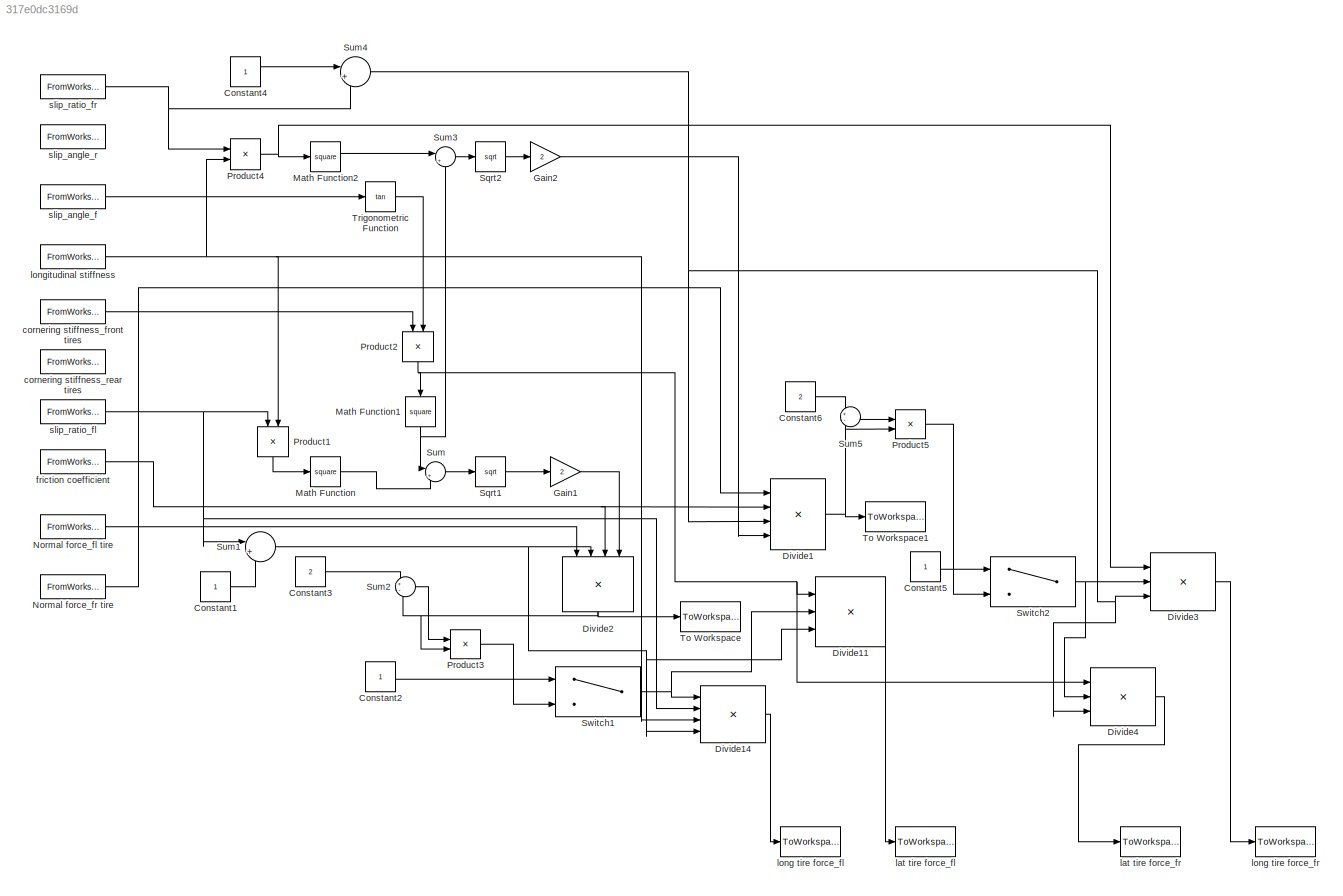
MODEL slx_317e0dc3169d
KIND model
CONFIG AbsTol = auto
CONFIG FixedStep = auto
CONFIG MaxStep = auto
CONFIG MinStep = auto
CONFIG RelTol = 1e-3
CONFIG SampleTimeConstraint = Unconstrained
CONFIG Solver = ode45
CONFIG SolverMode = Auto
CONFIG SolverName = ode45
CONFIG StartTime = 0.0
CONFIG StopTime = 10.0
BLOCK [Constant] Constant1
BLOCK [Constant] Constant2
BLOCK [Constant] Constant3
  Value = 2
BLOCK [Constant] Constant4
BLOCK [Constant] Constant5
BLOCK [Constant] Constant6
  Value = 2
BLOCK [Product] Divide1
  InputSameDT = off
  Inputs = ***/
  OutDataTypeStr = Inherit: Inherit via internal rule
  Ports = [4, 1]
  RndMeth = Floor
  SaturateOnIntegerOverflow = off
BLOCK [Product] Divide11
  InputSameDT = off
  Inputs = **/
  OutDataTypeStr = Inherit: Inherit via internal rule
  Ports = [3, 1]
  RndMeth = Floor
  SaturateOnIntegerOverflow = off
BLOCK [Product] Divide14
  InputSameDT = off
  Inputs = ***/
  OutDataTypeStr = Inherit: Inherit via internal rule
  Ports = [4, 1]
  RndMeth = Floor
  SaturateOnIntegerOverflow = off
BLOCK [Product] Divide2
  InputSameDT = off
  Inputs = ***/
  OutDataTypeStr = Inherit: Inherit via internal rule
  Ports = [4, 1]
  RndMeth = Floor
  SaturateOnIntegerOverflow = off
BLOCK [Product] Divide3
  InputSameDT = off
  Inputs = **/
  OutDataTypeStr = Inherit: Inherit via internal rule
  Ports = [3, 1]
  RndMeth = Floor
  SaturateOnIntegerOverflow = off
BLOCK [Product] Divide4
  InputSameDT = off
  Inputs = **/
  OutDataTypeStr = Inherit: Inherit via internal rule
  Ports = [3, 1]
  RndMeth = Floor
  SaturateOnIntegerOverflow = off
BLOCK [Gain] Gain1
  Gain = 2
  OutDataTypeStr = Inherit: Inherit via internal rule
  ParamDataTypeStr = Inherit: Inherit via internal rule
  SaturateOnIntegerOverflow = off
BLOCK [Gain] Gain2
  Gain = 2
  OutDataTypeStr = Inherit: Inherit via internal rule
  ParamDataTypeStr = Inherit: Inherit via internal rule
  SaturateOnIntegerOverflow = off
BLOCK [Math] Math Function
  Operator = square
  Ports = [1, 1]
BLOCK [Math] Math Function1
  Operator = square
  Ports = [1, 1]
BLOCK [Math] Math Function2
  Operator = square
  Ports = [1, 1]
BLOCK [FromWorkspace] Normal force_fl tire
  SampleTime = 0
  VariableName = Fz_fl
  ZeroCross = on
BLOCK [FromWorkspace] Normal force_fr tire
  SampleTime = 0
  VariableName = Fz_fr
  ZeroCross = on
BLOCK [Product] Product1
  InputSameDT = off
  OutDataTypeStr = Inherit: Inherit via internal rule
  Ports = [2, 1]
  RndMeth = Floor
  SaturateOnIntegerOverflow = off
BLOCK [Product] Product2
  InputSameDT = off
  OutDataTypeStr = Inherit: Inherit via internal rule
  Ports = [2, 1]
  RndMeth = Floor
  SaturateOnIntegerOverflow = off
BLOCK [Product] Product3
  InputSameDT = off
  OutDataTypeStr = Inherit: Inherit via internal rule
  Ports = [2, 1]
  RndMeth = Floor
  SaturateOnIntegerOverflow = off
BLOCK [Product] Product4
  InputSameDT = off
  OutDataTypeStr = Inherit: Inherit via internal rule
  Ports = [2, 1]
  RndMeth = Floor
  SaturateOnIntegerOverflow = off
BLOCK [Product] Product5
  InputSameDT = off
  OutDataTypeStr = Inherit: Inherit via internal rule
  Ports = [2, 1]
  RndMeth = Floor
  SaturateOnIntegerOverflow = off
BLOCK [Sqrt] Sqrt1
BLOCK [Sqrt] Sqrt2
BLOCK [Sum] Sum
  IconShape = round
  InputSameDT = off
  Inputs = |++
  OutDataTypeStr = Inherit: Inherit via internal rule
  Ports = [2, 1]
  SaturateOnIntegerOverflow = off
BLOCK [Sum] Sum1
  IconShape = round
  InputSameDT = off
  Inputs = |++
  OutDataTypeStr = Inherit: Inherit via internal rule
  Ports = [2, 1]
  SaturateOnIntegerOverflow = off
BLOCK [Sum] Sum2
  IconShape = round
  InputSameDT = off
  Inputs = +-
  OutDataTypeStr = Inherit: Inherit via internal rule
  Ports = [2, 1]
  SaturateOnIntegerOverflow = off
BLOCK [Sum] Sum3
  IconShape = round
  InputSameDT = off
  Inputs = |++
  OutDataTypeStr = Inherit: Inherit via internal rule
  Ports = [2, 1]
  SaturateOnIntegerOverflow = off
BLOCK [Sum] Sum4
  IconShape = round
  InputSameDT = off
  Inputs = |++
  OutDataTypeStr = Inherit: Inherit via internal rule
  Ports = [2, 1]
  SaturateOnIntegerOverflow = off
BLOCK [Sum] Sum5
  IconShape = round
  InputSameDT = off
  Inputs = +-
  OutDataTypeStr = Inherit: Inherit via internal rule
  Ports = [2, 1]
  SaturateOnIntegerOverflow = off
BLOCK [Switch] Switch1
  InputSameDT = off
  SaturateOnIntegerOverflow = off
  Threshold = 1
BLOCK [Switch] Switch2
  InputSameDT = off
  SaturateOnIntegerOverflow = off
  Threshold = 1
BLOCK [ToWorkspace] To Workspace
  FixptAsFi = on
  MaxDataPoints = inf
  Ports = [1]
  SampleTime = -1
  Save2DSignal = 3-D array (concatenate along third dimension)
  SaveFormat = Timeseries
  VariableName = lambda_fl
BLOCK [ToWorkspace] To Workspace1
  FixptAsFi = on
  MaxDataPoints = inf
  Ports = [1]
  SampleTime = -1
  Save2DSignal = 3-D array (concatenate along third dimension)
  SaveFormat = Timeseries
  VariableName = lambda_fr
BLOCK [Trigonometry] Trigonometric Function
  Operator = tan
  Ports = [1, 1]
BLOCK [FromWorkspace] cornering stiffness_front tires
  SampleTime = 0
  VariableName = corn_stiff_f
  ZeroCross = on
BLOCK [FromWorkspace] cornering stiffness_rear tires
  SampleTime = 0
  VariableName = corn_stiff_r
  ZeroCross = on
BLOCK [FromWorkspace] friction coefficient
  SampleTime = 0
  VariableName = friction_coeff
  ZeroCross = on
BLOCK [ToWorkspace] lat tire force_fl
  FixptAsFi = on
  MaxDataPoints = inf
  Ports = [1]
  SampleTime = -1
  Save2DSignal = 3-D array (concatenate along third dimension)
  SaveFormat = Timeseries
  VariableName = F_yfl
BLOCK [ToWorkspace] lat tire force_fr
  FixptAsFi = on
  MaxDataPoints = inf
  Ports = [1]
  SampleTime = -1
  Save2DSignal = 3-D array (concatenate along third dimension)
  SaveFormat = Timeseries
  VariableName = F_yfr
BLOCK [ToWorkspace] long tire force_fl
  FixptAsFi = on
  MaxDataPoints = inf
  Ports = [1]
  SampleTime = -1
  Save2DSignal = 3-D array (concatenate along third dimension)
  SaveFormat = Timeseries
  VariableName = F_xfl
BLOCK [ToWorkspace] long tire force_fr
  FixptAsFi = on
  MaxDataPoints = inf
  Ports = [1]
  SampleTime = -1
  Save2DSignal = 3-D array (concatenate along third dimension)
  SaveFormat = Timeseries
  VariableName = F_xfr
BLOCK [FromWorkspace] longitudinal stiffness
  SampleTime = 0
  VariableName = long_stiff
  ZeroCross = on
BLOCK [FromWorkspace] slip_angle_f
  SampleTime = 0
  VariableName = slip_angle_f
  ZeroCross = on
BLOCK [FromWorkspace] slip_angle_r
  SampleTime = 0
  VariableName = slip_angle_r
  ZeroCross = on
BLOCK [FromWorkspace] slip_ratio_fl
  SampleTime = 0
  VariableName = slip_ratio_fl
  ZeroCross = on
BLOCK [FromWorkspace] slip_ratio_fr
  SampleTime = 0
  VariableName = slip_ratio_fr
  ZeroCross = on
LINE Constant1:1 -> Sum1:2
LINE Constant2:1 -> Switch1:1
LINE Constant3:1 -> Sum2:1
LINE Constant4:1 -> Sum4:1
LINE Constant5:1 -> Switch2:1
LINE Constant6:1 -> Sum5:1
LINE Divide11:1 -> lat tire force_fl:1
LINE Divide14:1 -> long tire force_fl:1
NET Divide1:1 -> Product5:2, Sum5:2, To Workspace1:1
NET Divide2:1 -> Product3:2, Sum2:2, To Workspace:1
LINE Divide3:1 -> long tire force_fr:1
LINE Divide4:1 -> lat tire force_fr:1
LINE Gain1:1 -> Divide2:4
LINE Gain2:1 -> Divide1:4
NET Math Function1:1 -> Sum3:2, Sum:1
LINE Math Function2:1 -> Sum3:1
LINE Math Function:1 -> Sum:2
LINE Normal force_fl tire:1 -> Divide2:1
LINE Normal force_fr tire:1 -> Divide1:1
LINE Product1:1 -> Math Function:1
NET Product2:1 -> Divide11:1, Divide4:1, Math Function1:1
LINE Product3:1 -> Switch1:3
NET Product4:1 -> Divide3:1, Math Function2:1
LINE Product5:1 -> Switch2:3
LINE Sqrt1:1 -> Gain1:1
LINE Sqrt2:1 -> Gain2:1
NET Sum1:1 -> Divide11:3, Divide14:4, Divide2:2
LINE Sum2:1 -> Product3:1
LINE Sum3:1 -> Sqrt2:1
NET Sum4:1 -> Divide1:3, Divide3:3, Divide4:3
LINE Sum5:1 -> Product5:1
LINE Sum:1 -> Sqrt1:1
NET Switch1:1 -> Divide11:2, Divide14:1
NET Switch2:1 -> Divide3:2, Divide4:2
LINE Trigonometric Function:1 -> Product2:2
LINE cornering stiffness_front tires:1 -> Product2:1
NET friction coefficient:1 -> Divide1:2, Divide2:3
NET longitudinal stiffness:1 -> Divide14:3, Product1:2, Product4:2
LINE slip_angle_f:1 -> Trigonometric Function:1
NET slip_ratio_fl:1 -> Divide14:2, Product1:1, Sum1:1
NET slip_ratio_fr:1 -> Product4:1, Sum4:2
note: NET lines group one-source signal fan-out (src -> all destinations, sorted); 1:1 wires keep LINE
